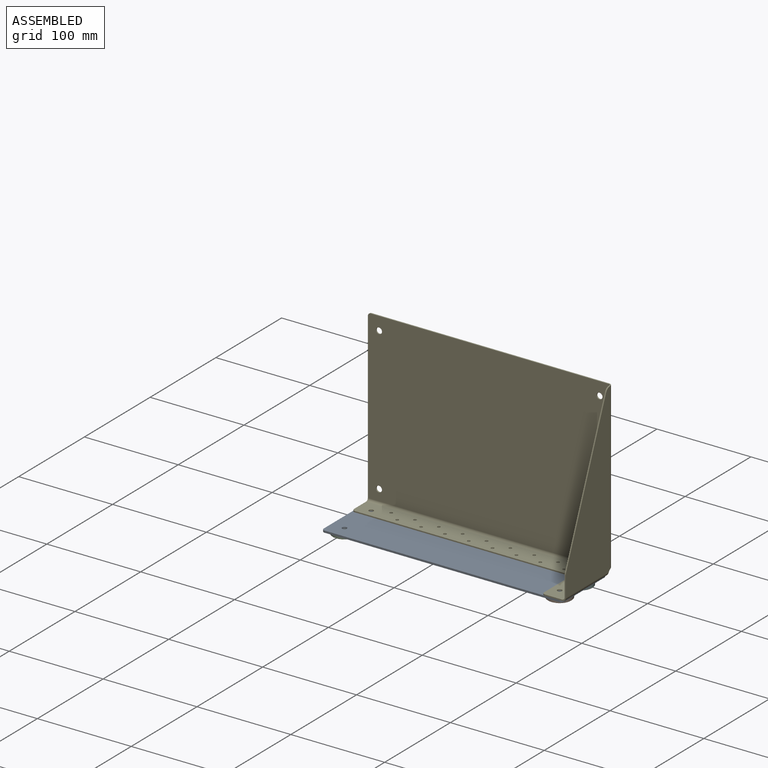
[diagram: assembled view]
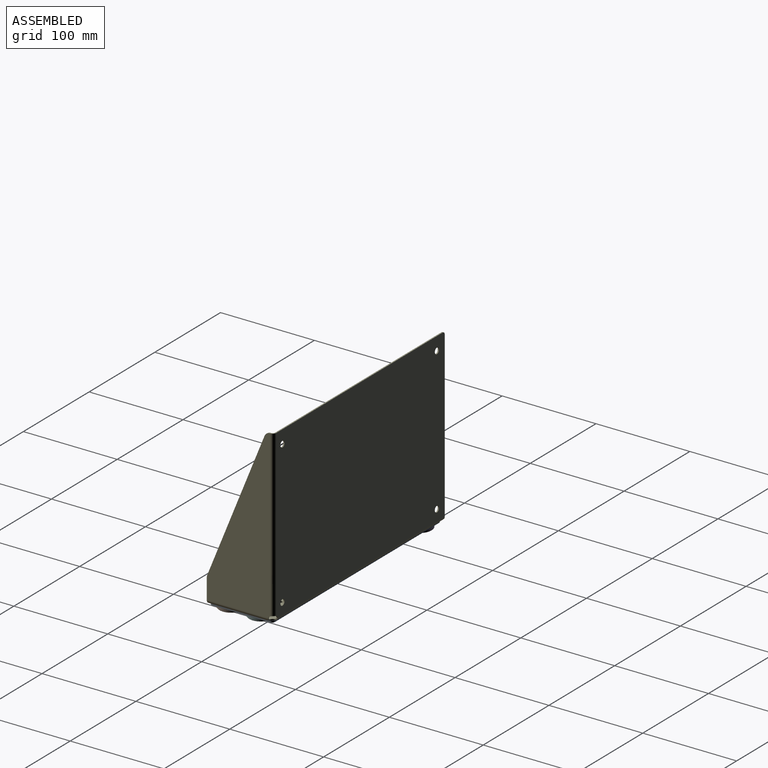
[diagram: assembled view, second angle]
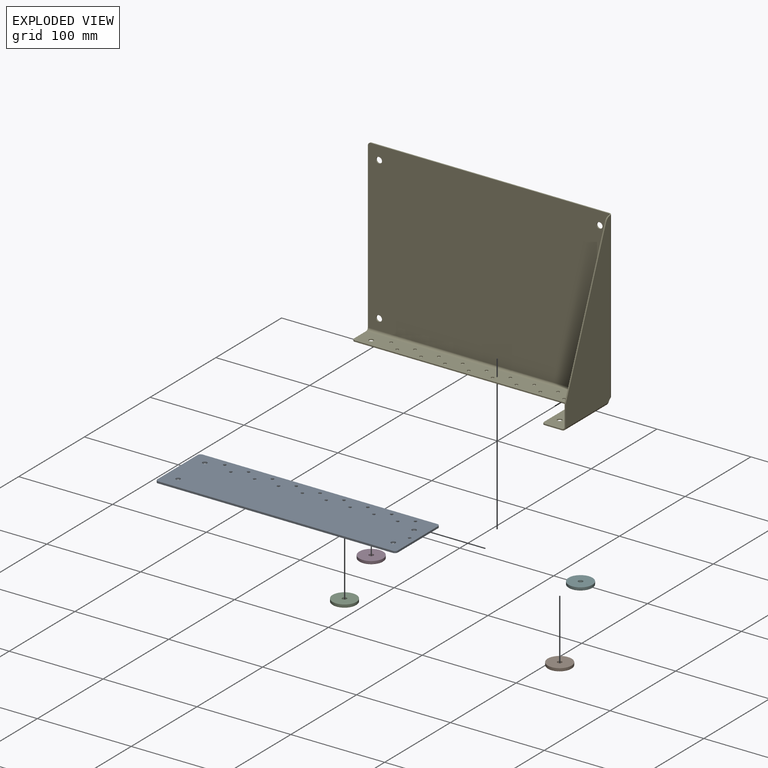
[diagram: exploded view]
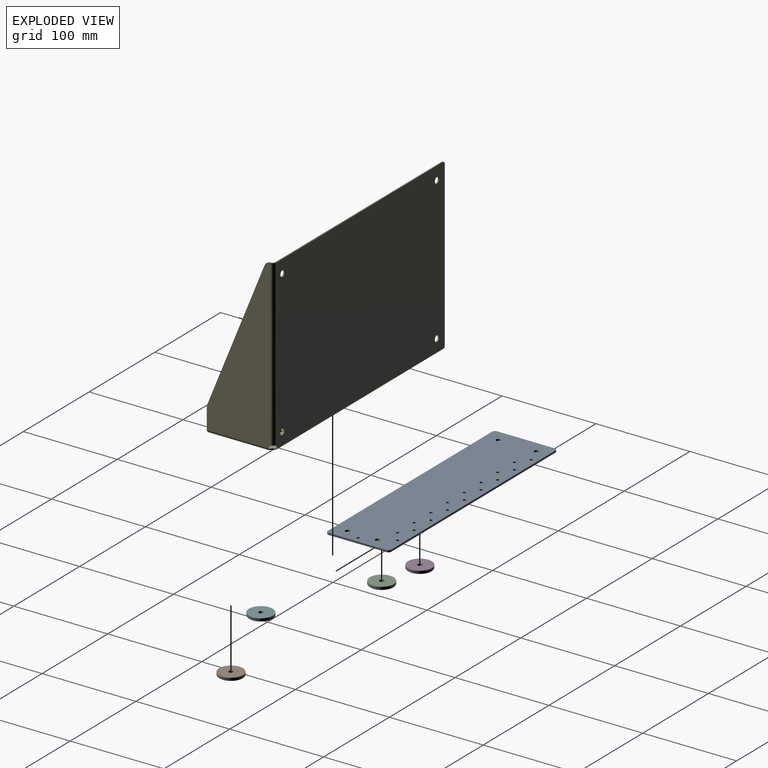
[diagram: exploded view, second angle]
ASSEMBLY  parts=6 mates=5
PART A: 50 faces, bbox 256.2x67.6x2 mm
  f0: plane 61.28x2.03mm, normal (1,0,0), area 124.5mm2, adj f8,f9,f10,f13
  f1: plane 249.87x2.03mm, normal (0,-1,0), area 507.7mm2, adj f8,f9,f10,f11
  f2: plane 61.28x2.03mm, normal (-1,0,0), area 124.5mm2, adj f8,f9,f11,f12
  f3: cylinder r=2.43mm len=4.85mm, axis (0,0,1), area 31mm2, adj f8,f9
  f4: cylinder r=2.43mm len=4.85mm, axis (0,0,1), area 31mm2, adj f8,f9
  f5: cylinder r=2.43mm len=4.85mm, axis (0,0,1), area 31mm2, adj f8,f9
  f6: cylinder r=2.43mm len=4.85mm, axis (0,0,1), area 31mm2, adj f8,f9
  f7: plane 249.87x2.03mm, normal (0,1,0), area 507.7mm2, adj f8,f9,f12,f13
  f8: plane 256.22x67.63mm, normal (0,0,-1), area 16783.4mm2, adj f0,f1,f2,f3,f4,f5,f6,f7
  f9: plane 256.22x67.63mm, normal (0,0,1), area 17102.6mm2, adj f0,f1,f2,f3,f4,f5,f6,f7
  f10: cylinder r=3.17mm len=3.18mm, axis (0,0,-1), area 10.1mm2, adj f0,f1,f8,f9
  f11: cylinder r=3.17mm len=3.18mm, axis (0,0,1), area 10.1mm2, adj f1,f2,f8,f9
  f12: cylinder r=3.17mm len=3.18mm, axis (0,0,-1), area 10.1mm2, adj f2,f7,f8,f9
  f13: cylinder r=3.17mm len=3.18mm, axis (0,0,1), area 10.1mm2, adj f0,f7,f8,f9
  f14: cylinder r=1.59mm len=3.18mm, axis (0,0,-1), area 9.6mm2, adj f9,f15
  f15: cone r=1.59mm half-angle=50deg, axis (0,0,-1), area 23.2mm2, adj f8,f14
  f16: cylinder r=1.59mm len=3.18mm, axis (0,0,-1), area 9.6mm2, adj f9,f17
  f17: cone r=1.59mm half-angle=50deg, axis (0,0,-1), area 23.2mm2, adj f8,f16
  f18: cylinder r=1.59mm len=3.18mm, axis (0,0,-1), area 9.6mm2, adj f9,f19
  f19: cone r=1.59mm half-angle=50deg, axis (0,0,-1), area 23.2mm2, adj f8,f18
  f20: cylinder r=1.59mm len=3.18mm, axis (0,0,-1), area 9.6mm2, adj f9,f21
  f21: cone r=1.59mm half-angle=50deg, axis (0,0,-1), area 23.2mm2, adj f8,f20
  f22: cylinder r=1.59mm len=3.18mm, axis (0,0,-1), area 9.6mm2, adj f9,f23
  f23: cone r=1.59mm half-angle=50deg, axis (0,0,-1), area 23.2mm2, adj f8,f22
  f24: cylinder r=1.59mm len=3.18mm, axis (0,0,-1), area 9.6mm2, adj f9,f25
  f25: cone r=1.59mm half-angle=50deg, axis (0,0,-1), area 23.2mm2, adj f8,f24
  f26: cylinder r=1.59mm len=3.18mm, axis (0,0,-1), area 9.6mm2, adj f9,f27
  f27: cone r=1.59mm half-angle=50deg, axis (0,0,-1), area 23.2mm2, adj f8,f26
  f28: cylinder r=1.59mm len=3.18mm, axis (0,0,-1), area 9.6mm2, adj f9,f29
  f29: cone r=1.59mm half-angle=50deg, axis (0,0,-1), area 23.2mm2, adj f8,f28
  f30: cylinder r=1.59mm len=3.18mm, axis (0,0,-1), area 9.6mm2, adj f9,f31
  f31: cone r=1.59mm half-angle=50deg, axis (0,0,-1), area 23.2mm2, adj f8,f30
  f32: cylinder r=1.59mm len=3.18mm, axis (0,0,-1), area 9.6mm2, adj f9,f33
  f33: cone r=1.59mm half-angle=50deg, axis (0,0,-1), area 23.2mm2, adj f8,f32
  f34: cylinder r=1.59mm len=3.18mm, axis (0,0,-1), area 9.6mm2, adj f9,f35
  f35: cone r=1.59mm half-angle=50deg, axis (0,0,-1), area 23.2mm2, adj f8,f34
  f36: cylinder r=1.59mm len=3.18mm, axis (0,0,-1), area 9.6mm2, adj f9,f37
  f37: cone r=1.59mm half-angle=50deg, axis (0,0,-1), area 23.2mm2, adj f8,f36
  f38: cylinder r=1.59mm len=3.18mm, axis (0,0,-1), area 9.6mm2, adj f9,f39
  f39: cone r=1.59mm half-angle=50deg, axis (0,0,-1), area 23.2mm2, adj f8,f38
  f40: cylinder r=1.59mm len=3.18mm, axis (0,0,-1), area 9.6mm2, adj f9,f41
  f41: cone r=1.59mm half-angle=50deg, axis (0,0,-1), area 23.2mm2, adj f8,f40
  f42: cylinder r=1.59mm len=3.18mm, axis (0,0,-1), area 9.6mm2, adj f9,f43
  f43: cone r=1.59mm half-angle=50deg, axis (0,0,-1), area 23.2mm2, adj f8,f42
  f44: cylinder r=1.59mm len=3.18mm, axis (0,0,-1), area 9.6mm2, adj f9,f45
  f45: cone r=1.59mm half-angle=50deg, axis (0,0,-1), area 23.2mm2, adj f8,f44
  f46: cylinder r=1.59mm len=3.18mm, axis (0,0,-1), area 9.6mm2, adj f9,f47
  f47: cone r=1.59mm half-angle=50deg, axis (0,0,-1), area 23.2mm2, adj f8,f46
  f48: cylinder r=1.59mm len=3.18mm, axis (0,0,-1), area 9.6mm2, adj f9,f49
  f49: cone r=1.59mm half-angle=50deg, axis (0,0,-1), area 23.2mm2, adj f8,f48
PART B: 6 faces, bbox 25.4x25.4x3.2 mm
  f0: cylinder r=12.7mm len=25.4mm, axis (0,0,1), area 223mm2, adj f2,f5
  f1: plane 24.64x24.64mm, normal (0,0,-1), area 452mm2, adj f4,f5
  f2: plane 25.4x25.4mm, normal (0,0,1), area 488.2mm2, adj f0,f3
  f3: cylinder r=2.43mm len=4.85mm, axis (0,0,1), area 42.6mm2, adj f2,f4
  f4: cone r=2.43mm half-angle=45deg, axis (0,0,-1), area 8.9mm2, adj f1,f3
  f5: cone r=12.7mm half-angle=45deg, axis (0,0,1), area 42.4mm2, adj f0,f1
PART C: 6 faces, bbox 25.4x25.4x3.2 mm
  f0: cylinder r=12.7mm len=25.4mm, axis (0,0,1), area 223mm2, adj f2,f5
  f1: plane 24.64x24.64mm, normal (0,0,-1), area 452mm2, adj f4,f5
  f2: plane 25.4x25.4mm, normal (0,0,1), area 488.2mm2, adj f0,f3
  f3: cylinder r=2.43mm len=4.85mm, axis (0,0,1), area 42.6mm2, adj f2,f4
  f4: cone r=2.43mm half-angle=45deg, axis (0,0,-1), area 8.9mm2, adj f1,f3
  f5: cone r=12.7mm half-angle=45deg, axis (0,0,1), area 42.4mm2, adj f0,f1
PART D: 6 faces, bbox 25.4x25.4x3.2 mm
  f0: cylinder r=12.7mm len=25.4mm, axis (0,0,1), area 223mm2, adj f2,f5
  f1: plane 24.64x24.64mm, normal (0,0,-1), area 452mm2, adj f4,f5
  f2: plane 25.4x25.4mm, normal (0,0,1), area 488.2mm2, adj f0,f3
  f3: cylinder r=2.43mm len=4.85mm, axis (0,0,1), area 42.6mm2, adj f2,f4
  f4: cone r=2.43mm half-angle=45deg, axis (0,0,-1), area 8.9mm2, adj f1,f3
  f5: cone r=12.7mm half-angle=45deg, axis (0,0,1), area 42.4mm2, adj f0,f1
PART E: 65 faces, bbox 260x71.4x182.2 mm
  f0: plane 175.26x1.27mm, normal (-1,0,0), area 222.6mm2, adj f6,f7,f8,f61
  f1: plane 253.05x1.27mm, normal (0,0,1), area 321.4mm2, adj f6,f7,f8,f32
  f2: cylinder r=3.17mm len=6.35mm, axis (0,-1,0), area 25.3mm2, adj f6,f7
  f3: cylinder r=3.17mm len=6.35mm, axis (0,-1,0), area 25.3mm2, adj f6,f7
  f4: cylinder r=3.17mm len=6.35mm, axis (0,-1,0), area 25.3mm2, adj f6,f7
  f5: cylinder r=3.17mm len=6.35mm, axis (0,-1,0), area 25.3mm2, adj f6,f7
  f6: plane 256.22x178.44mm, normal (0,1,0), area 45587.4mm2, adj f0,f1,f2,f3,f4,f5,f8,f9
  f7: plane 256.22x178.44mm, normal (0,-1,0), area 45587.4mm2, adj f0,f1,f2,f3,f4,f5,f8,f9
  f8: cylinder r=3.17mm len=3.18mm, axis (0,-1,0), area 6.3mm2, adj f0,f1,f6,f7
  f9: cylinder r=5.2mm len=2.15mm, axis (0,-1,0), area 3.9mm2, adj f6,f7,f33,f62
  f10: plane 178.44x67.63mm, normal (1,0,0), area 7146.2mm2, adj f11,f12,f13,f14,f15,f17,f30,f34
  f11: plane 150.47x61.11mm, normal (0,-0.93,0.38), area 206.2mm2, adj f10,f12,f15,f16
  f12: cylinder r=6.35mm len=2.39mm, axis (1,0,0), area 3.1mm2, adj f10,f11,f13,f16
  f13: plane 21.62x1.27mm, normal (0,-1,0), area 27.5mm2, adj f10,f12,f16,f28
  f14: plane 1.27x0.17mm, normal (0,0,1), area 0.2mm2, adj f10,f15,f16,f32
  f15: cylinder r=6.35mm len=5.88mm, axis (1,0,0), area 9.6mm2, adj f10,f11,f14,f16
  f16: plane 178.44x67.63mm, normal (-1,0,0), area 7146.2mm2, adj f11,f12,f13,f14,f15,f17,f31,f35
  f17: cylinder r=5.2mm len=2.15mm, axis (-1,0,0), area 3.9mm2, adj f10,f16,f29,f33
  f18: plane 20.36x20.36mm, normal (-0.71,0.71,0), area 36.6mm2, adj f19,f20,f25,f27
  f19: plane 66.38x21.59mm, normal (0,0,-1), area 1178.2mm2, adj f18,f20,f21,f22,f23,f24,f26,f27
  f20: plane 42.84x1.27mm, normal (-1,0,0), area 54.4mm2, adj f18,f19,f25,f26
  f21: cylinder r=1.59mm len=3.18mm, axis (0,0,-1), area 12.7mm2, adj f19,f25
  f22: cylinder r=2.43mm len=4.85mm, axis (0,0,-1), area 19.4mm2, adj f19,f25
  f23: cylinder r=2.43mm len=4.85mm, axis (0,0,-1), area 19.4mm2, adj f19,f25
  f24: plane 18.42x1.27mm, normal (0,-1,0), area 23.4mm2, adj f19,f25,f26,f28
  f25: plane 66.38x21.59mm, normal (0,0,1), area 1178.2mm2, adj f18,f20,f21,f22,f23,f24,f26,f27
  f26: cylinder r=3.17mm len=3.18mm, axis (0,0,-1), area 6.3mm2, adj f19,f20,f24,f25
  f27: cylinder r=5.2mm len=1.27mm, axis (0,0,1), area 1.9mm2, adj f18,f19,f25,f29
  f28: plane 3.81x3.81mm, normal (0,-1,0), area 6.3mm2, adj f13,f24,f30,f31
  f29: bspline ~3.81x3.81mm, area 6.6mm2, adj f17,f27,f30,f31
  f30: cylinder r=3.81mm len=65.48mm, axis (0,-1,0), area 389.4mm2, adj f10,f19,f28,f29
  f31: cylinder r=2.54mm len=65.48mm, axis (0,-1,0), area 259.6mm2, adj f16,f25,f28,f29
  f32: plane 3.81x3.81mm, normal (0,0,1), area 6.3mm2, adj f1,f14,f34,f35
  f33: bspline ~3.81x3.81mm, area 6.6mm2, adj f9,f17,f34,f35
  f34: cylinder r=3.81mm len=176.29mm, axis (0,0,-1), area 1052.6mm2, adj f6,f10,f32,f33
  f35: cylinder r=2.54mm len=176.29mm, axis (0,0,-1), area 701.7mm2, adj f7,f16,f32,f33
  f36: plane 20.36x20.36mm, normal (0.71,-0.71,0), area 36.6mm2, adj f37,f38,f58,f60
  f37: plane 254.98x21.59mm, normal (0,0,-1), area 5141.8mm2, adj f36,f38,f39,f40,f41,f42,f43,f44
  f38: plane 231.44x1.27mm, normal (0,-1,0), area 293.9mm2, adj f36,f37,f58,f59
  f39: plane 18.42x1.27mm, normal (-1,0,0), area 23.4mm2, adj f37,f58,f59,f61
  f40: cylinder r=1.59mm len=3.18mm, axis (0,0,-1), area 12.7mm2, adj f37,f58
  f41: cylinder r=1.59mm len=3.18mm, axis (0,0,-1), area 12.7mm2, adj f37,f58
  f42: cylinder r=1.59mm len=3.18mm, axis (0,0,-1), area 12.7mm2, adj f37,f58
  f43: cylinder r=1.59mm len=3.18mm, axis (0,0,-1), area 12.7mm2, adj f37,f58
  f44: cylinder r=1.59mm len=3.18mm, axis (0,0,-1), area 12.7mm2, adj f37,f58
  f45: cylinder r=1.59mm len=3.18mm, axis (0,0,-1), area 12.7mm2, adj f37,f58
  f46: cylinder r=1.59mm len=3.18mm, axis (0,0,-1), area 12.7mm2, adj f37,f58
  f47: cylinder r=1.59mm len=3.18mm, axis (0,0,-1), area 12.7mm2, adj f37,f58
  f48: cylinder r=1.59mm len=3.18mm, axis (0,0,-1), area 12.7mm2, adj f37,f58
  f49: cylinder r=1.59mm len=3.18mm, axis (0,0,-1), area 12.7mm2, adj f37,f58
  f50: cylinder r=1.59mm len=3.18mm, axis (0,0,-1), area 12.7mm2, adj f37,f58
  f51: cylinder r=1.59mm len=3.18mm, axis (0,0,-1), area 12.7mm2, adj f37,f58
  f52: cylinder r=1.59mm len=3.18mm, axis (0,0,-1), area 12.7mm2, adj f37,f58
  f53: cylinder r=1.59mm len=3.18mm, axis (0,0,-1), area 12.7mm2, adj f37,f58
  f54: cylinder r=1.59mm len=3.18mm, axis (0,0,-1), area 12.7mm2, adj f37,f58
  f55: cylinder r=1.59mm len=3.18mm, axis (0,0,-1), area 12.7mm2, adj f37,f58
  f56: cylinder r=1.59mm len=3.18mm, axis (0,0,-1), area 12.7mm2, adj f37,f58
  f57: cylinder r=2.43mm len=4.85mm, axis (0,0,-1), area 19.4mm2, adj f37,f58
  f58: plane 254.98x21.59mm, normal (0,0,1), area 5141.8mm2, adj f36,f38,f39,f40,f41,f42,f43,f44
  f59: cylinder r=3.17mm len=3.18mm, axis (0,0,-1), area 6.3mm2, adj f37,f38,f39,f58
  f60: cylinder r=5.2mm len=1.27mm, axis (0,0,1), area 1.9mm2, adj f36,f37,f58,f62
  f61: plane 3.81x3.81mm, normal (-1,0,0), area 6.3mm2, adj f0,f39,f63,f64
  f62: bspline ~3.81x3.81mm, area 6.6mm2, adj f9,f60,f63,f64
  f63: cylinder r=3.81mm len=254.07mm, axis (1,0,0), area 1518.1mm2, adj f6,f37,f61,f62
  f64: cylinder r=2.54mm len=254.07mm, axis (1,0,0), area 1012.1mm2, adj f7,f58,f61,f62
PART F: 6 faces, bbox 25.4x25.4x3.2 mm
  f0: cylinder r=12.7mm len=25.4mm, axis (0,0,1), area 223mm2, adj f2,f5
  f1: plane 24.64x24.64mm, normal (0,0,-1), area 452mm2, adj f4,f5
  f2: plane 25.4x25.4mm, normal (0,0,1), area 488.2mm2, adj f0,f3
  f3: cylinder r=2.43mm len=4.85mm, axis (0,0,1), area 42.6mm2, adj f2,f4
  f4: cone r=2.43mm half-angle=45deg, axis (0,0,-1), area 8.9mm2, adj f1,f3
  f5: cone r=12.7mm half-angle=45deg, axis (0,0,1), area 42.4mm2, adj f0,f1
PLACE A t=(1,-37.61,-96.9)mm
PLACE B t=(68.32,-28.88,-96.9)mm
PLACE C t=(-44.03,-28.88,-96.9)mm
PLACE D t=(-44.35,-41.07,-96.9)mm
PLACE E t=(2.27,0.01,-3.11)mm
PLACE F t=(62.88,-48.04,-96.9)mm
MATE fastened F.f0 <-> A.f4  axis (0,0,1) through (116.41,-25.39,-96.9)mm
MATE fastened E.f23 <-> A.f5  axis (0,0,-1) through (116.41,-57.14,-94.86)mm
MATE fastened B.f0 <-> A.f5  axis (0,0,1) through (116.41,-57.14,-96.9)mm
MATE fastened D.f0 <-> A.f3  axis (0,0,1) through (-112.82,-16.5,-96.9)mm
MATE fastened C.f0 <-> A.f6  axis (0,0,1) through (-112.82,-57.14,-96.9)mm
